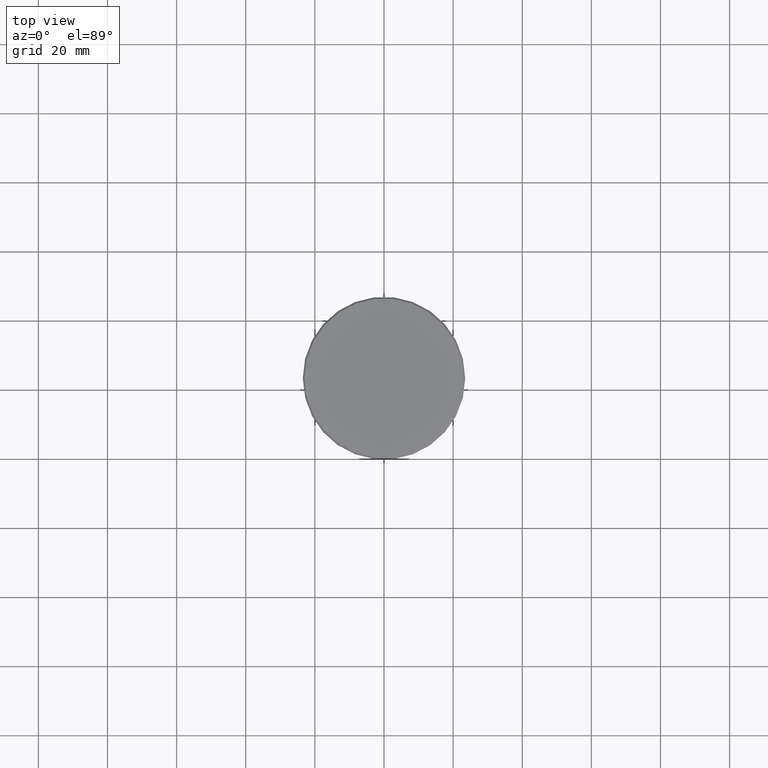
[diagram: clean part render]
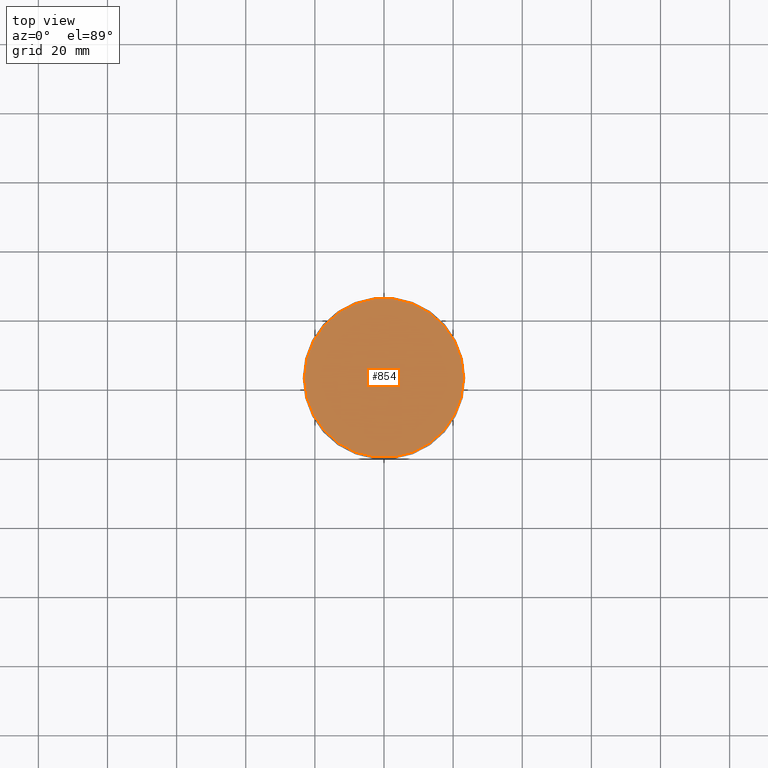
[diagram: same view with one face highlighted and labeled with its STEP entity id]
A machine part, top view. The second image highlights one B-rep face of the part: STEP entity #854.
In plain terms, the highlighted planar face has unit normal (0, -0, 1).
Its self-contained STEP definition (entity closure, byte-faithful):
#93 = CIRCLE ( 'NONE', #633, 22.99999999999999645 ) ;
#137 = DIRECTION ( 'NONE',  ( -0.000000000000000000, -0.000000000000000000, 1.000000000000000000 ) ) ;
#188 = AXIS2_PLACEMENT_3D ( 'NONE', #1033, #574, #682 ) ;
#310 = VERTEX_POINT ( 'NONE', #904 ) ;
#331 = AXIS2_PLACEMENT_3D ( 'NONE', #678, #137, #484 ) ;
#399 = ORIENTED_EDGE ( 'NONE', *, *, #1007, .T. ) ;
#445 = EDGE_LOOP ( 'NONE', ( #399, #844 ) ) ;
#484 = DIRECTION ( 'NONE',  ( 1.000000000000000000, 0.000000000000000000, 0.000000000000000000 ) ) ;
#574 = DIRECTION ( 'NONE',  ( 0.000000000000000000, -0.000000000000000000, 1.000000000000000000 ) ) ;
#582 = PLANE ( 'NONE',  #188 ) ;
#620 = CARTESIAN_POINT ( 'NONE',  ( 0.000000000000000000, 0.000000000000000000, 0.000000000000000000 ) ) ;
#633 = AXIS2_PLACEMENT_3D ( 'NONE', #620, #1142, #973 ) ;
#669 = CIRCLE ( 'NONE', #331, 22.99999999999999645 ) ;
#678 = CARTESIAN_POINT ( 'NONE',  ( 0.000000000000000000, 0.000000000000000000, 0.000000000000000000 ) ) ;
#682 = DIRECTION ( 'NONE',  ( 1.000000000000000000, 0.000000000000000000, 0.000000000000000000 ) ) ;
#714 = VERTEX_POINT ( 'NONE', #811 ) ;
#811 = CARTESIAN_POINT ( 'NONE',  ( 22.99999999999999645, 2.847303808017596139E-15, 0.000000000000000000 ) ) ;
#827 = EDGE_CURVE ( 'NONE', #714, #310, #669, .T. ) ;
#844 = ORIENTED_EDGE ( 'NONE', *, *, #827, .T. ) ;
#854 = ADVANCED_FACE ( 'NONE', ( #1046 ), #582, .T. ) ;
#904 = CARTESIAN_POINT ( 'NONE',  ( -22.99999999999999645, 0.000000000000000000, 0.000000000000000000 ) ) ;
#973 = DIRECTION ( 'NONE',  ( 1.000000000000000000, 0.000000000000000000, 0.000000000000000000 ) ) ;
#1007 = EDGE_CURVE ( 'NONE', #310, #714, #93, .T. ) ;
#1033 = CARTESIAN_POINT ( 'NONE',  ( 0.000000000000000000, 0.000000000000000000, 0.000000000000000000 ) ) ;
#1046 = FACE_OUTER_BOUND ( 'NONE', #445, .T. ) ;
#1142 = DIRECTION ( 'NONE',  ( -0.000000000000000000, -0.000000000000000000, 1.000000000000000000 ) ) ;